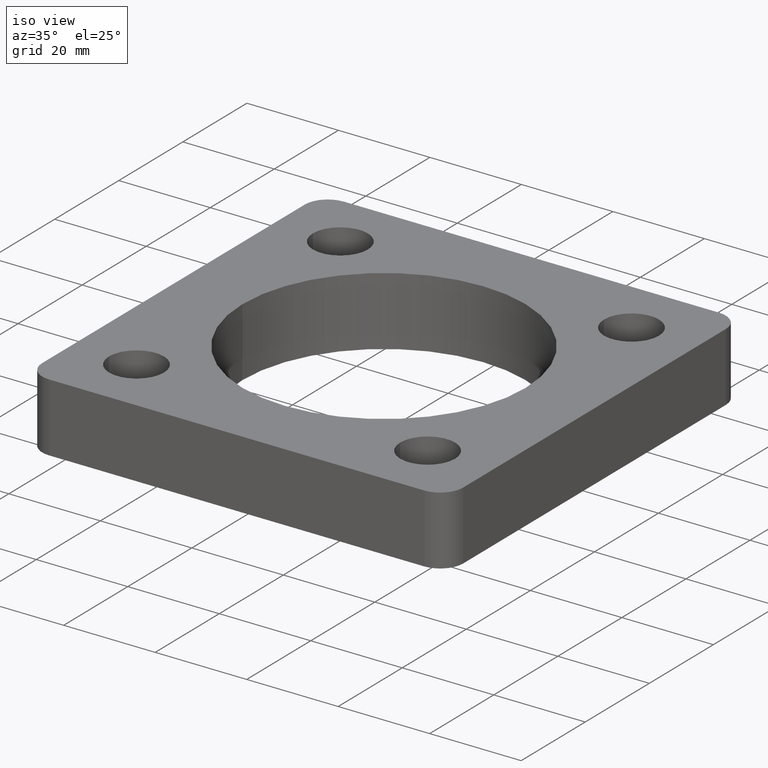
[diagram: clean part render]
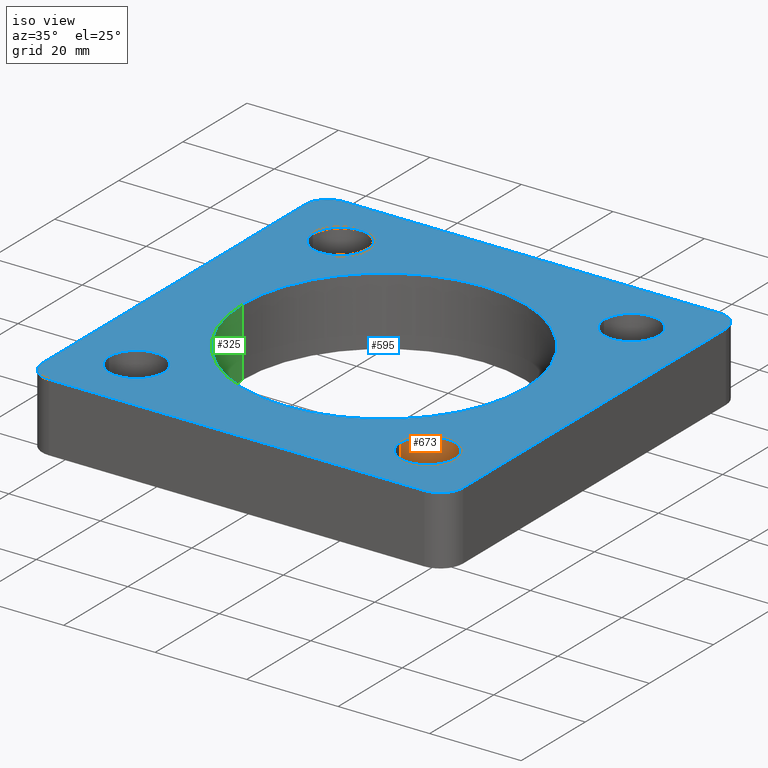
[diagram: same view with three faces highlighted in distinct colors, each labeled with its STEP entity id]
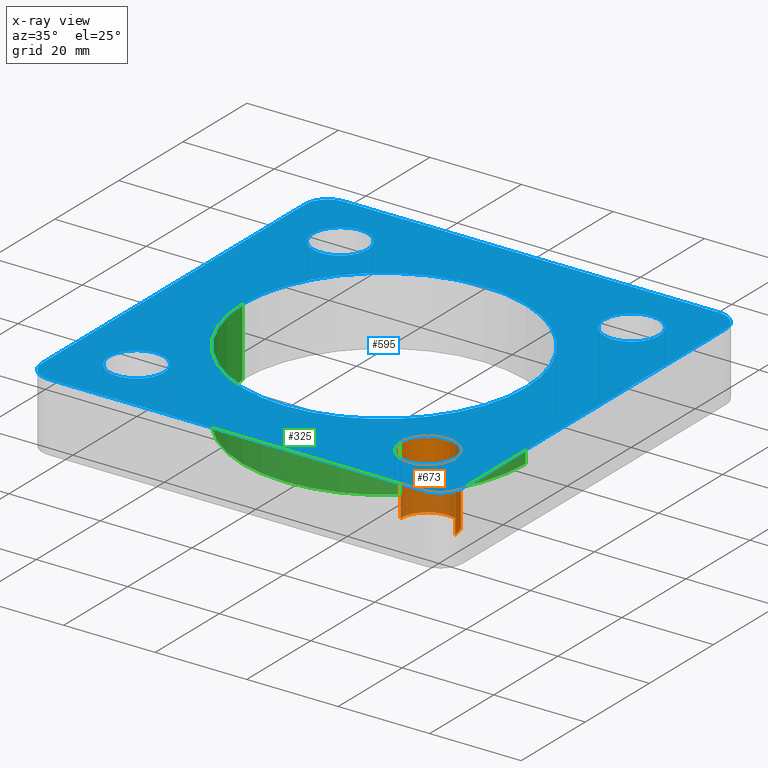
[diagram: x-ray of the same camera — body ghosted, the three highlighted faces saturated]
A machine part, iso view with three faces highlighted in distinct colors.
The next image is the same camera in x-ray (body ghosted, the three faces saturated) — at least one of them is partly hidden behind the body in this view.
Their STEP definitions:

[orange] entity #673 — the highlighted cylindrical surface (edge-blend (fillet) strip) has radius 6 mm, axis along (0, -0, 1).
#18 = AXIS2_PLACEMENT_3D ( 'NONE', #636, #405, #575 ) ;
#34 = ORIENTED_EDGE ( 'NONE', *, *, #299, .T. ) ;
#38 = FACE_OUTER_BOUND ( 'NONE', #69, .T. ) ;
#69 = EDGE_LOOP ( 'NONE', ( #222, #485, #34, #209 ) ) ;
#92 = AXIS2_PLACEMENT_3D ( 'NONE', #389, #621, #207 ) ;
#105 = LINE ( 'NONE', #149, #518 ) ;
#106 = LINE ( 'NONE', #119, #592 ) ;
#109 = CARTESIAN_POINT ( 'NONE',  ( 25.81980515339481741, -31.81980515339446214, -1.000000000000000888 ) ) ;
#119 = CARTESIAN_POINT ( 'NONE',  ( 37.81980515339481741, -31.81980515339446214, -16.00000000000000000 ) ) ;
#127 = DIRECTION ( 'NONE',  ( -3.469446951953615372E-15, 1.000000000000000000, 0.000000000000000000 ) ) ;
#131 = CARTESIAN_POINT ( 'NONE',  ( 31.81980515339481741, -31.81980515339446214, -16.00000000000000000 ) ) ;
#149 = CARTESIAN_POINT ( 'NONE',  ( 25.81980515339481741, -31.81980515339446214, -16.00000000000000000 ) ) ;
#156 = CARTESIAN_POINT ( 'NONE',  ( 37.81980515339481741, -31.81980515339446214, -1.000000000000000888 ) ) ;
#178 = DIRECTION ( 'NONE',  ( 0.000000000000000000, -0.000000000000000000, 1.000000000000000000 ) ) ;
#207 = DIRECTION ( 'NONE',  ( 1.000000000000000000, 0.000000000000000000, 0.000000000000000000 ) ) ;
#209 = ORIENTED_EDGE ( 'NONE', *, *, #315, .F. ) ;
#222 = ORIENTED_EDGE ( 'NONE', *, *, #663, .F. ) ;
#261 = VERTEX_POINT ( 'NONE', #109 ) ;
#299 = EDGE_CURVE ( 'NONE', #309, #564, #106, .T. ) ;
#301 = DIRECTION ( 'NONE',  ( 0.000000000000000000, 0.000000000000000000, 1.000000000000000000 ) ) ;
#309 = VERTEX_POINT ( 'NONE', #455 ) ;
#315 = EDGE_CURVE ( 'NONE', #261, #564, #409, .T. ) ;
#389 = CARTESIAN_POINT ( 'NONE',  ( 31.81980515339481741, -31.81980515339446214, -16.00000000000000000 ) ) ;
#405 = DIRECTION ( 'NONE',  ( -0.000000000000000000, -0.000000000000000000, -1.000000000000000000 ) ) ;
#409 = CIRCLE ( 'NONE', #18, 5.999999999999998224 ) ;
#418 = CARTESIAN_POINT ( 'NONE',  ( 25.81980515339481741, -31.81980515339446214, -16.00000000000000000 ) ) ;
#454 = EDGE_CURVE ( 'NONE', #309, #523, #657, .T. ) ;
#455 = CARTESIAN_POINT ( 'NONE',  ( 37.81980515339481741, -31.81980515339446214, -16.00000000000000000 ) ) ;
#468 = AXIS2_PLACEMENT_3D ( 'NONE', #131, #301, #127 ) ;
#485 = ORIENTED_EDGE ( 'NONE', *, *, #454, .F. ) ;
#518 = VECTOR ( 'NONE', #612, 1000.000000000000000 ) ;
#523 = VERTEX_POINT ( 'NONE', #418 ) ;
#564 = VERTEX_POINT ( 'NONE', #156 ) ;
#565 = CYLINDRICAL_SURFACE ( 'NONE', #92, 5.999999999999998224 ) ;
#575 = DIRECTION ( 'NONE',  ( 1.000000000000000000, 0.000000000000000000, 0.000000000000000000 ) ) ;
#592 = VECTOR ( 'NONE', #178, 1000.000000000000000 ) ;
#612 = DIRECTION ( 'NONE',  ( 0.000000000000000000, -0.000000000000000000, 1.000000000000000000 ) ) ;
#621 = DIRECTION ( 'NONE',  ( 0.000000000000000000, -0.000000000000000000, 1.000000000000000000 ) ) ;
#636 = CARTESIAN_POINT ( 'NONE',  ( 31.81980515339481741, -31.81980515339446214, -1.000000000000000888 ) ) ;
#657 = CIRCLE ( 'NONE', #468, 5.999999999999998224 ) ;
#663 = EDGE_CURVE ( 'NONE', #523, #261, #105, .T. ) ;
#673 = ADVANCED_FACE ( 'NONE', ( #38 ), #565, .F. ) ;

[blue] entity #595 — the highlighted planar face has unit normal (0, 0, 1).
#3 = DIRECTION ( 'NONE',  ( 0.000000000000000000, 0.000000000000000000, 1.000000000000000000 ) ) ;
#5 = AXIS2_PLACEMENT_3D ( 'NONE', #402, #3, #277 ) ;
#13 = CARTESIAN_POINT ( 'NONE',  ( 0.000000000000000000, 0.000000000000000000, -1.000000000000000000 ) ) ;
#15 = CARTESIAN_POINT ( 'NONE',  ( 30.95000000000000284, 0.000000000000000000, -1.000000000000000000 ) ) ;
#17 = DIRECTION ( 'NONE',  ( 1.000000000000000000, 0.000000000000000000, 0.000000000000000000 ) ) ;
#18 = AXIS2_PLACEMENT_3D ( 'NONE', #636, #405, #575 ) ;
#20 = EDGE_CURVE ( 'NONE', #26, #718, #27, .T. ) ;
#23 = EDGE_LOOP ( 'NONE', ( #476, #330 ) ) ;
#26 = VERTEX_POINT ( 'NONE', #447 ) ;
#27 = CIRCLE ( 'NONE', #694, 5.999999999999998224 ) ;
#40 = CIRCLE ( 'NONE', #460, 5.999999999999998224 ) ;
#42 = CARTESIAN_POINT ( 'NONE',  ( -41.00000000000000000, -41.00000000000000000, -1.000000000000000000 ) ) ;
#50 = CARTESIAN_POINT ( 'NONE',  ( 0.000000000000000000, 0.000000000000000000, -1.000000000000000000 ) ) ;
#56 = DIRECTION ( 'NONE',  ( -0.000000000000000000, -0.000000000000000000, -1.000000000000000000 ) ) ;
#59 = DIRECTION ( 'NONE',  ( -0.000000000000000000, -0.000000000000000000, -1.000000000000000000 ) ) ;
#67 = CIRCLE ( 'NONE', #387, 5.999999999999998224 ) ;
#71 = DIRECTION ( 'NONE',  ( 0.000000000000000000, 0.000000000000000000, 1.000000000000000000 ) ) ;
#86 = ORIENTED_EDGE ( 'NONE', *, *, #120, .T. ) ;
#95 = EDGE_LOOP ( 'NONE', ( #690, #316 ) ) ;
#100 = CARTESIAN_POINT ( 'NONE',  ( 40.99999999999999289, 40.99999999999999289, -1.000000000000000000 ) ) ;
#101 = LINE ( 'NONE', #318, #528 ) ;
#107 = VERTEX_POINT ( 'NONE', #197 ) ;
#108 = FACE_BOUND ( 'NONE', #23, .T. ) ;
#109 = CARTESIAN_POINT ( 'NONE',  ( 25.81980515339481741, -31.81980515339446214, -1.000000000000000888 ) ) ;
#115 = EDGE_LOOP ( 'NONE', ( #605, #500 ) ) ;
#120 = EDGE_CURVE ( 'NONE', #126, #466, #720, .T. ) ;
#124 = AXIS2_PLACEMENT_3D ( 'NONE', #13, #71, #168 ) ;
#126 = VERTEX_POINT ( 'NONE', #672 ) ;
#136 = VERTEX_POINT ( 'NONE', #254 ) ;
#148 = VERTEX_POINT ( 'NONE', #610 ) ;
#156 = CARTESIAN_POINT ( 'NONE',  ( 37.81980515339481741, -31.81980515339446214, -1.000000000000000888 ) ) ;
#164 = DIRECTION ( 'NONE',  ( 1.000000000000000000, 0.000000000000000000, 0.000000000000000000 ) ) ;
#168 = DIRECTION ( 'NONE',  ( 1.000000000000000000, 0.000000000000000000, 0.000000000000000000 ) ) ;
#171 = EDGE_CURVE ( 'NONE', #148, #586, #101, .T. ) ;
#173 = AXIS2_PLACEMENT_3D ( 'NONE', #50, #395, #398 ) ;
#176 = CARTESIAN_POINT ( 'NONE',  ( -31.81980515339503768, 31.81980515339424187, -1.000000000000000888 ) ) ;
#184 = CIRCLE ( 'NONE', #715, 5.000000000000004441 ) ;
#185 = DIRECTION ( 'NONE',  ( 1.000000000000000000, 0.000000000000000000, 0.000000000000000000 ) ) ;
#186 = VERTEX_POINT ( 'NONE', #669 ) ;
#190 = ORIENTED_EDGE ( 'NONE', *, *, #171, .T. ) ;
#192 = EDGE_CURVE ( 'NONE', #586, #404, #184, .T. ) ;
#197 = CARTESIAN_POINT ( 'NONE',  ( -46.00000000000000711, 40.99999999999999289, -1.000000000000000000 ) ) ;
#201 = CARTESIAN_POINT ( 'NONE',  ( 46.00000000000001421, -41.00000000000000711, -1.000000000000000000 ) ) ;
#205 = CIRCLE ( 'NONE', #682, 4.999999999999997335 ) ;
#211 = DIRECTION ( 'NONE',  ( 8.462065736472231082E-17, -1.000000000000000000, 0.000000000000000000 ) ) ;
#212 = EDGE_CURVE ( 'NONE', #107, #582, #727, .T. ) ;
#213 = VERTEX_POINT ( 'NONE', #440 ) ;
#214 = DIRECTION ( 'NONE',  ( -0.000000000000000000, -0.000000000000000000, -1.000000000000000000 ) ) ;
#220 = DIRECTION ( 'NONE',  ( 0.000000000000000000, 0.000000000000000000, 1.000000000000000000 ) ) ;
#221 = CARTESIAN_POINT ( 'NONE',  ( -37.81980515339457583, -31.81980515339470728, -1.000000000000000888 ) ) ;
#224 = EDGE_LOOP ( 'NONE', ( #635, #535 ) ) ;
#225 = CARTESIAN_POINT ( 'NONE',  ( -31.81980515339457583, -31.81980515339470728, -1.000000000000000888 ) ) ;
#254 = CARTESIAN_POINT ( 'NONE',  ( 45.99999999999999289, 40.99999999999999289, -1.000000000000000888 ) ) ;
#258 = ORIENTED_EDGE ( 'NONE', *, *, #354, .T. ) ;
#259 = DIRECTION ( 'NONE',  ( 0.000000000000000000, 0.000000000000000000, 1.000000000000000000 ) ) ;
#261 = VERTEX_POINT ( 'NONE', #109 ) ;
#265 = AXIS2_PLACEMENT_3D ( 'NONE', #730, #686, #556 ) ;
#268 = EDGE_CURVE ( 'NONE', #281, #538, #338, .T. ) ;
#272 = EDGE_CURVE ( 'NONE', #701, #341, #542, .T. ) ;
#274 = ORIENTED_EDGE ( 'NONE', *, *, #416, .T. ) ;
#276 = ORIENTED_EDGE ( 'NONE', *, *, #212, .T. ) ;
#277 = DIRECTION ( 'NONE',  ( 1.000000000000000000, 0.000000000000000000, 0.000000000000000000 ) ) ;
#281 = VERTEX_POINT ( 'NONE', #285 ) ;
#282 = EDGE_CURVE ( 'NONE', #186, #213, #654, .T. ) ;
#285 = CARTESIAN_POINT ( 'NONE',  ( -30.95000000000000284, 3.790281843361058831E-15, -1.000000000000000000 ) ) ;
#289 = AXIS2_PLACEMENT_3D ( 'NONE', #42, #220, #392 ) ;
#305 = EDGE_CURVE ( 'NONE', #341, #701, #616, .T. ) ;
#315 = EDGE_CURVE ( 'NONE', #261, #564, #409, .T. ) ;
#316 = ORIENTED_EDGE ( 'NONE', *, *, #315, .T. ) ;
#318 = CARTESIAN_POINT ( 'NONE',  ( -41.00000000000000000, -46.00000000000000711, -1.000000000000000000 ) ) ;
#320 = DIRECTION ( 'NONE',  ( 0.000000000000000000, 0.000000000000000000, 1.000000000000000000 ) ) ;
#322 = DIRECTION ( 'NONE',  ( -1.000000000000000000, 0.000000000000000000, 0.000000000000000000 ) ) ;
#324 = FACE_BOUND ( 'NONE', #679, .T. ) ;
#326 = DIRECTION ( 'NONE',  ( 1.000000000000000000, 0.000000000000000000, 0.000000000000000000 ) ) ;
#330 = ORIENTED_EDGE ( 'NONE', *, *, #20, .T. ) ;
#338 = CIRCLE ( 'NONE', #173, 30.95000000000000284 ) ;
#341 = VERTEX_POINT ( 'NONE', #221 ) ;
#344 = DIRECTION ( 'NONE',  ( -0.000000000000000000, -0.000000000000000000, -1.000000000000000000 ) ) ;
#347 = DIRECTION ( 'NONE',  ( -2.538619720941668955E-16, 1.000000000000000000, 0.000000000000000000 ) ) ;
#348 = CIRCLE ( 'NONE', #503, 4.999999999999997335 ) ;
#354 = EDGE_CURVE ( 'NONE', #582, #148, #665, .T. ) ;
#355 = CARTESIAN_POINT ( 'NONE',  ( -41.00000000000000711, 45.99999999999999289, -1.000000000000000000 ) ) ;
#364 = AXIS2_PLACEMENT_3D ( 'NONE', #176, #59, #326 ) ;
#374 = VECTOR ( 'NONE', #322, 1000.000000000000000 ) ;
#376 = ORIENTED_EDGE ( 'NONE', *, *, #305, .T. ) ;
#378 = CARTESIAN_POINT ( 'NONE',  ( -46.00000000000000711, 40.99999999999999289, -1.000000000000000000 ) ) ;
#387 = AXIS2_PLACEMENT_3D ( 'NONE', #498, #214, #164 ) ;
#390 = DIRECTION ( 'NONE',  ( 1.000000000000000000, 0.000000000000000000, 0.000000000000000000 ) ) ;
#392 = DIRECTION ( 'NONE',  ( 1.000000000000000000, 0.000000000000000000, -0.000000000000000000 ) ) ;
#395 = DIRECTION ( 'NONE',  ( 0.000000000000000000, 0.000000000000000000, 1.000000000000000000 ) ) ;
#398 = DIRECTION ( 'NONE',  ( 1.000000000000000000, 0.000000000000000000, 0.000000000000000000 ) ) ;
#402 = CARTESIAN_POINT ( 'NONE',  ( -41.00000000000000000, -41.00000000000000000, -1.000000000000000000 ) ) ;
#404 = VERTEX_POINT ( 'NONE', #702 ) ;
#405 = DIRECTION ( 'NONE',  ( -0.000000000000000000, -0.000000000000000000, -1.000000000000000000 ) ) ;
#407 = ORIENTED_EDGE ( 'NONE', *, *, #272, .T. ) ;
#409 = CIRCLE ( 'NONE', #18, 5.999999999999998224 ) ;
#410 = VECTOR ( 'NONE', #347, 1000.000000000000000 ) ;
#414 = EDGE_LOOP ( 'NONE', ( #258, #190, #645, #430, #438, #86, #274, #276 ) ) ;
#415 = CARTESIAN_POINT ( 'NONE',  ( 31.81980515339481741, -31.81980515339446214, -1.000000000000000888 ) ) ;
#416 = EDGE_CURVE ( 'NONE', #466, #107, #205, .T. ) ;
#422 = CIRCLE ( 'NONE', #265, 5.999999999999998224 ) ;
#424 = EDGE_CURVE ( 'NONE', #564, #261, #40, .T. ) ;
#430 = ORIENTED_EDGE ( 'NONE', *, *, #432, .T. ) ;
#432 = EDGE_CURVE ( 'NONE', #404, #136, #597, .T. ) ;
#435 = PLANE ( 'NONE',  #289 ) ;
#438 = ORIENTED_EDGE ( 'NONE', *, *, #678, .T. ) ;
#439 = CARTESIAN_POINT ( 'NONE',  ( 41.00000000000000711, -46.00000000000000711, -1.000000000000000000 ) ) ;
#440 = CARTESIAN_POINT ( 'NONE',  ( -25.81980515339504123, 31.81980515339424187, -1.000000000000000888 ) ) ;
#447 = CARTESIAN_POINT ( 'NONE',  ( 25.81980515339457583, 31.81980515339470728, -1.000000000000000888 ) ) ;
#456 = CARTESIAN_POINT ( 'NONE',  ( 31.81980515339457583, 31.81980515339470728, -1.000000000000000888 ) ) ;
#460 = AXIS2_PLACEMENT_3D ( 'NONE', #415, #649, #17 ) ;
#466 = VERTEX_POINT ( 'NONE', #355 ) ;
#467 = CARTESIAN_POINT ( 'NONE',  ( -41.00000000000000711, 40.99999999999999289, -1.000000000000000000 ) ) ;
#469 = CIRCLE ( 'NONE', #124, 30.95000000000000284 ) ;
#476 = ORIENTED_EDGE ( 'NONE', *, *, #641, .T. ) ;
#489 = VECTOR ( 'NONE', #211, 1000.000000000000000 ) ;
#494 = FACE_BOUND ( 'NONE', #95, .T. ) ;
#497 = DIRECTION ( 'NONE',  ( 1.000000000000000000, 0.000000000000000000, 0.000000000000000000 ) ) ;
#498 = CARTESIAN_POINT ( 'NONE',  ( -31.81980515339503768, 31.81980515339424187, -1.000000000000000888 ) ) ;
#500 = ORIENTED_EDGE ( 'NONE', *, *, #268, .F. ) ;
#503 = AXIS2_PLACEMENT_3D ( 'NONE', #100, #320, #734 ) ;
#528 = VECTOR ( 'NONE', #664, 1000.000000000000000 ) ;
#535 = ORIENTED_EDGE ( 'NONE', *, *, #282, .T. ) ;
#538 = VERTEX_POINT ( 'NONE', #15 ) ;
#540 = CARTESIAN_POINT ( 'NONE',  ( 40.99999999999998579, 45.99999999999999289, -1.000000000000000000 ) ) ;
#542 = CIRCLE ( 'NONE', #604, 5.999999999999998224 ) ;
#546 = DIRECTION ( 'NONE',  ( 0.000000000000000000, 0.000000000000000000, 1.000000000000000000 ) ) ;
#556 = DIRECTION ( 'NONE',  ( 1.000000000000000000, 0.000000000000000000, 0.000000000000000000 ) ) ;
#558 = DIRECTION ( 'NONE',  ( 1.000000000000000000, 0.000000000000000000, 0.000000000000000000 ) ) ;
#564 = VERTEX_POINT ( 'NONE', #156 ) ;
#567 = AXIS2_PLACEMENT_3D ( 'NONE', #626, #344, #390 ) ;
#574 = CARTESIAN_POINT ( 'NONE',  ( 37.81980515339457583, 31.81980515339470728, -1.000000000000000888 ) ) ;
#575 = DIRECTION ( 'NONE',  ( 1.000000000000000000, 0.000000000000000000, 0.000000000000000000 ) ) ;
#582 = VERTEX_POINT ( 'NONE', #681 ) ;
#586 = VERTEX_POINT ( 'NONE', #439 ) ;
#595 = ADVANCED_FACE ( 'NONE', ( #741, #671, #494, #108, #737, #324 ), #435, .T. ) ;
#597 = LINE ( 'NONE', #201, #410 ) ;
#604 = AXIS2_PLACEMENT_3D ( 'NONE', #225, #56, #558 ) ;
#605 = ORIENTED_EDGE ( 'NONE', *, *, #744, .F. ) ;
#606 = EDGE_CURVE ( 'NONE', #213, #186, #67, .T. ) ;
#607 = CARTESIAN_POINT ( 'NONE',  ( 41.00000000000000711, -41.00000000000000711, -1.000000000000000000 ) ) ;
#610 = CARTESIAN_POINT ( 'NONE',  ( -41.00000000000000000, -46.00000000000000711, -1.000000000000000000 ) ) ;
#616 = CIRCLE ( 'NONE', #567, 5.999999999999998224 ) ;
#626 = CARTESIAN_POINT ( 'NONE',  ( -31.81980515339457583, -31.81980515339470728, -1.000000000000000888 ) ) ;
#635 = ORIENTED_EDGE ( 'NONE', *, *, #606, .T. ) ;
#636 = CARTESIAN_POINT ( 'NONE',  ( 31.81980515339481741, -31.81980515339446214, -1.000000000000000888 ) ) ;
#641 = EDGE_CURVE ( 'NONE', #718, #26, #422, .T. ) ;
#645 = ORIENTED_EDGE ( 'NONE', *, *, #192, .T. ) ;
#649 = DIRECTION ( 'NONE',  ( -0.000000000000000000, -0.000000000000000000, -1.000000000000000000 ) ) ;
#654 = CIRCLE ( 'NONE', #364, 5.999999999999998224 ) ;
#664 = DIRECTION ( 'NONE',  ( 1.000000000000000000, 0.000000000000000000, 0.000000000000000000 ) ) ;
#665 = CIRCLE ( 'NONE', #5, 4.999999999999997335 ) ;
#669 = CARTESIAN_POINT ( 'NONE',  ( -37.81980515339503768, 31.81980515339424187, -1.000000000000000888 ) ) ;
#671 = FACE_OUTER_BOUND ( 'NONE', #414, .T. ) ;
#672 = CARTESIAN_POINT ( 'NONE',  ( 40.99999999999998579, 45.99999999999999289, -1.000000000000000000 ) ) ;
#678 = EDGE_CURVE ( 'NONE', #136, #126, #348, .T. ) ;
#679 = EDGE_LOOP ( 'NONE', ( #407, #376 ) ) ;
#681 = CARTESIAN_POINT ( 'NONE',  ( -46.00000000000000000, -41.00000000000000000, -1.000000000000000000 ) ) ;
#682 = AXIS2_PLACEMENT_3D ( 'NONE', #467, #259, #185 ) ;
#686 = DIRECTION ( 'NONE',  ( -0.000000000000000000, -0.000000000000000000, -1.000000000000000000 ) ) ;
#690 = ORIENTED_EDGE ( 'NONE', *, *, #424, .T. ) ;
#693 = DIRECTION ( 'NONE',  ( -0.000000000000000000, -0.000000000000000000, -1.000000000000000000 ) ) ;
#694 = AXIS2_PLACEMENT_3D ( 'NONE', #456, #693, #497 ) ;
#699 = CARTESIAN_POINT ( 'NONE',  ( -25.81980515339457583, -31.81980515339470728, -1.000000000000000888 ) ) ;
#701 = VERTEX_POINT ( 'NONE', #699 ) ;
#702 = CARTESIAN_POINT ( 'NONE',  ( 46.00000000000001421, -41.00000000000000711, -1.000000000000000000 ) ) ;
#715 = AXIS2_PLACEMENT_3D ( 'NONE', #607, #546, #735 ) ;
#718 = VERTEX_POINT ( 'NONE', #574 ) ;
#720 = LINE ( 'NONE', #540, #374 ) ;
#727 = LINE ( 'NONE', #378, #489 ) ;
#730 = CARTESIAN_POINT ( 'NONE',  ( 31.81980515339457583, 31.81980515339470728, -1.000000000000000888 ) ) ;
#734 = DIRECTION ( 'NONE',  ( 1.000000000000000000, 0.000000000000000000, 0.000000000000000000 ) ) ;
#735 = DIRECTION ( 'NONE',  ( 1.000000000000000000, 0.000000000000000000, 0.000000000000000000 ) ) ;
#737 = FACE_BOUND ( 'NONE', #224, .T. ) ;
#741 = FACE_BOUND ( 'NONE', #115, .T. ) ;
#744 = EDGE_CURVE ( 'NONE', #538, #281, #469, .T. ) ;

[green] entity #325 — the highlighted cylindrical surface (partial cylindrical patch) has radius 30.95 mm, axis along (-0, -0, 1).
#15 = CARTESIAN_POINT ( 'NONE',  ( 30.95000000000000284, 0.000000000000000000, -1.000000000000000000 ) ) ;
#36 = VERTEX_POINT ( 'NONE', #163 ) ;
#44 = ORIENTED_EDGE ( 'NONE', *, *, #150, .F. ) ;
#46 = FACE_OUTER_BOUND ( 'NONE', #611, .T. ) ;
#50 = CARTESIAN_POINT ( 'NONE',  ( 0.000000000000000000, 0.000000000000000000, -1.000000000000000000 ) ) ;
#72 = ORIENTED_EDGE ( 'NONE', *, *, #268, .T. ) ;
#73 = CARTESIAN_POINT ( 'NONE',  ( -30.95000000000000284, 3.790281843361058831E-15, -16.00000000000000000 ) ) ;
#121 = DIRECTION ( 'NONE',  ( -0.000000000000000000, -0.000000000000000000, 1.000000000000000000 ) ) ;
#150 = EDGE_CURVE ( 'NONE', #36, #620, #419, .T. ) ;
#161 = CARTESIAN_POINT ( 'NONE',  ( 30.95000000000000284, 0.000000000000000000, -16.00000000000000000 ) ) ;
#163 = CARTESIAN_POINT ( 'NONE',  ( -30.95000000000000284, 3.790281843361058831E-15, -16.00000000000000000 ) ) ;
#173 = AXIS2_PLACEMENT_3D ( 'NONE', #50, #395, #398 ) ;
#182 = VECTOR ( 'NONE', #121, 1000.000000000000000 ) ;
#234 = LINE ( 'NONE', #283, #182 ) ;
#245 = VECTOR ( 'NONE', #521, 1000.000000000000000 ) ;
#253 = AXIS2_PLACEMENT_3D ( 'NONE', #433, #661, #371 ) ;
#263 = AXIS2_PLACEMENT_3D ( 'NONE', #457, #280, #633 ) ;
#268 = EDGE_CURVE ( 'NONE', #281, #538, #338, .T. ) ;
#280 = DIRECTION ( 'NONE',  ( -0.000000000000000000, -0.000000000000000000, 1.000000000000000000 ) ) ;
#281 = VERTEX_POINT ( 'NONE', #285 ) ;
#283 = CARTESIAN_POINT ( 'NONE',  ( 30.95000000000000284, 0.000000000000000000, -16.00000000000000000 ) ) ;
#285 = CARTESIAN_POINT ( 'NONE',  ( -30.95000000000000284, 3.790281843361058831E-15, -1.000000000000000000 ) ) ;
#325 = ADVANCED_FACE ( 'NONE', ( #46 ), #572, .F. ) ;
#338 = CIRCLE ( 'NONE', #173, 30.95000000000000284 ) ;
#371 = DIRECTION ( 'NONE',  ( 1.000000000000000000, 0.000000000000000000, 0.000000000000000000 ) ) ;
#395 = DIRECTION ( 'NONE',  ( 0.000000000000000000, 0.000000000000000000, 1.000000000000000000 ) ) ;
#398 = DIRECTION ( 'NONE',  ( 1.000000000000000000, 0.000000000000000000, 0.000000000000000000 ) ) ;
#419 = CIRCLE ( 'NONE', #253, 30.95000000000000284 ) ;
#433 = CARTESIAN_POINT ( 'NONE',  ( 0.000000000000000000, 0.000000000000000000, -16.00000000000000000 ) ) ;
#457 = CARTESIAN_POINT ( 'NONE',  ( 0.000000000000000000, 0.000000000000000000, -16.00000000000000000 ) ) ;
#521 = DIRECTION ( 'NONE',  ( -0.000000000000000000, -0.000000000000000000, 1.000000000000000000 ) ) ;
#537 = LINE ( 'NONE', #73, #245 ) ;
#538 = VERTEX_POINT ( 'NONE', #15 ) ;
#539 = EDGE_CURVE ( 'NONE', #36, #281, #537, .T. ) ;
#555 = ORIENTED_EDGE ( 'NONE', *, *, #539, .T. ) ;
#572 = CYLINDRICAL_SURFACE ( 'NONE', #263, 30.95000000000000284 ) ;
#611 = EDGE_LOOP ( 'NONE', ( #44, #555, #72, #629 ) ) ;
#620 = VERTEX_POINT ( 'NONE', #161 ) ;
#629 = ORIENTED_EDGE ( 'NONE', *, *, #731, .F. ) ;
#633 = DIRECTION ( 'NONE',  ( 1.000000000000000000, 0.000000000000000000, 0.000000000000000000 ) ) ;
#661 = DIRECTION ( 'NONE',  ( 0.000000000000000000, 0.000000000000000000, 1.000000000000000000 ) ) ;
#731 = EDGE_CURVE ( 'NONE', #620, #538, #234, .T. ) ;